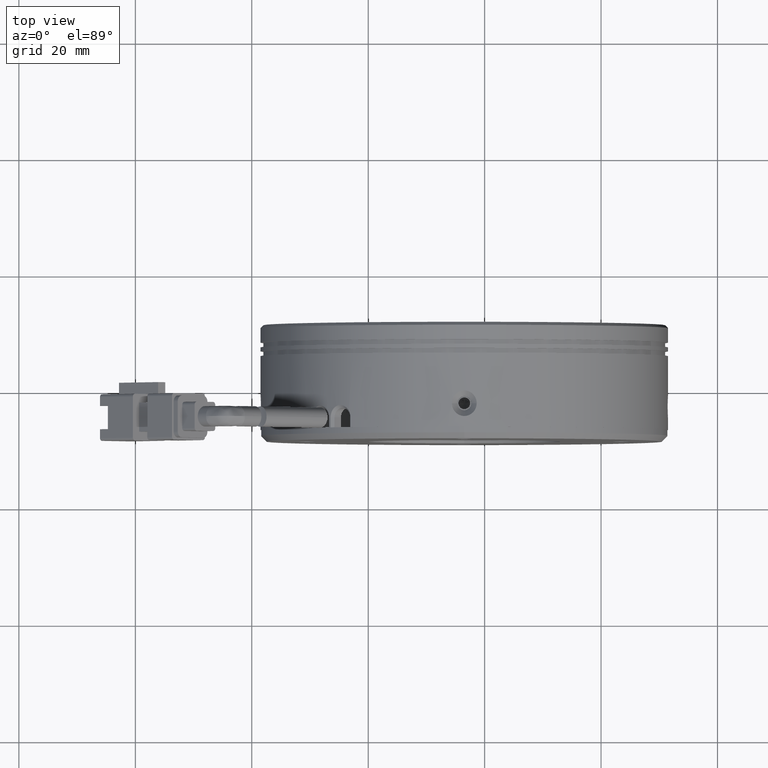
[diagram: clean part render]
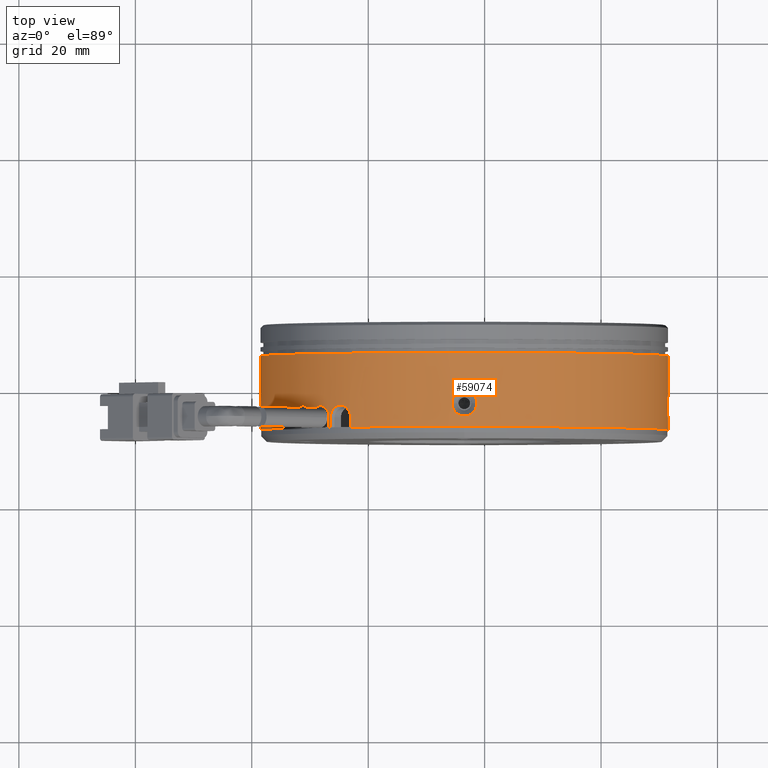
[diagram: same view with one face highlighted and labeled with its STEP entity id]
A machine part, top view. The second image highlights one B-rep face of the part: STEP entity #59074.
In plain terms, the highlighted cylindrical surface (partial cylindrical patch) has radius 35 mm, axis along (0, 1, 0).
Its self-contained STEP definition (entity closure, byte-faithful):
#90 = VECTOR ( 'NONE', #61698, 1000.000000000000000 ) ;
#496 = CARTESIAN_POINT ( 'NONE',  ( -3.355370643074829100, 34.87639525717587900, 34.99999074064810900 ) ) ;
#682 = B_SPLINE_CURVE_WITH_KNOTS ( 'NONE', 3,
 ( #10772, #73496, #64891, #59679, #17839, #66732, #24867, #73786, #31920, #80800, #38910, #87869, #45942, #4062, #52956, #11080, #59975, #18123, #67031, #25161, #74103, #32229, #81105, #39201, #88172, #46261, #4363, #53263, #11377, #60269 ),
 .UNSPECIFIED., .F., .F.,
 ( 4, 2, 2, 2, 2, 2, 2, 2, 2, 2, 2, 2, 2, 2, 4 ),
 ( 0.006801280354614730600, 0.007226328082781620700, 0.007651375810948510800, 0.008076423539115400900, 0.008501471267282290100, 0.009351566723616072000, 0.009776614451782964600, 0.01020166217994985600, 0.01062670990811674800, 0.01105175763628364100, 0.01147680536445053200, 0.01190185309261742500, 0.01232690082078431700, 0.01275194854895121000, 0.01360204400528499500 ),
 .UNSPECIFIED. ) ;
#795 = CARTESIAN_POINT ( 'NONE',  ( -5.579426259338808900, 36.50621998542190000, 34.93828416888767000 ) ) ;
#1013 = CARTESIAN_POINT ( 'NONE',  ( -32.21890749124506200, 36.17245694832277500, 20.00475085496275400 ) ) ;
#1087 = CARTESIAN_POINT ( 'NONE',  ( -38.44930703633446700, 38.17154099166220500, 1.871623688155621200 ) ) ;
#1326 = CARTESIAN_POINT ( 'NONE',  ( -30.45768874105179300, 36.45556069038318000, 22.32162571278679800 ) ) ;
#1375 = CARTESIAN_POINT ( 'NONE',  ( -32.52516980470208100, 33.08714941961366000, 19.55747368844025800 ) ) ;
#1688 = EDGE_CURVE ( 'NONE', #6267, #38843, #15653, .T. ) ;
#2411 = CARTESIAN_POINT ( 'NONE',  ( -23.05650673650320900, 33.10628284262292500, 29.02607274036124700 ) ) ;
#2578 = ORIENTED_EDGE ( 'NONE', *, *, #23024, .T. ) ;
#2735 = CARTESIAN_POINT ( 'NONE',  ( -38.43488934010948600, 36.79200188626543900, 2.121406078964621400 ) ) ;
#3035 = CARTESIAN_POINT ( 'NONE',  ( -38.49922928709050800, 34.87623869004255500, -1.373900992973631200E-014 ) ) ;
#3101 = CARTESIAN_POINT ( 'NONE',  ( 31.50077071290951400, 45.77623868994505300, 4.147485918937592700E-015 ) ) ;
#3259 = B_SPLINE_CURVE_WITH_KNOTS ( 'NONE', 3,
 ( #39654, #4498, #53699, #11812, #60711, #18865, #67759 ),
 .UNSPECIFIED., .F., .F.,
 ( 4, 3, 4 ),
 ( 7.632783294297951200E-017, 1.557727242651427000E-005, 4.511100456017559700E-005 ),
 .UNSPECIFIED. ) ;
#3858 = VERTEX_POINT ( 'NONE', #7149 ) ;
#4062 = CARTESIAN_POINT ( 'NONE',  ( -3.783482310473327700, 39.26154304773943000, 34.99912251806140500 ) ) ;
#4177 = CARTESIAN_POINT ( 'NONE',  ( -28.97946972464138300, 36.58691562346633900, 23.99626089325233000 ) ) ;
#4356 = DIRECTION ( 'NONE',  ( -1.000000000000000000, 0.0000000000000000000, -1.942890293094023500E-016 ) ) ;
#4363 = CARTESIAN_POINT ( 'NONE',  ( -1.575531328425882100, 38.04036387438655700, 34.94713316126452400 ) ) ;
#4463 = CARTESIAN_POINT ( 'NONE',  ( -27.10975982623885700, 36.14850123577952000, 25.83703752585223500 ) ) ;
#4497 = CARTESIAN_POINT ( 'NONE',  ( 31.45084846215306800, 35.98093638822206900, 1.871623688163358300 ) ) ;
#4498 = CARTESIAN_POINT ( 'NONE',  ( -26.46597744918592500, 33.08142987498360600, 26.41076445072638600 ) ) ;
#5124 = CARTESIAN_POINT ( 'NONE',  ( -26.41363987872078300, 35.32599599629639200, 26.45620074062070900 ) ) ;
#5422 = CARTESIAN_POINT ( 'NONE',  ( -24.58207903139069800, 36.86199809948782800, 27.93800242384497800 ) ) ;
#5696 = CARTESIAN_POINT ( 'NONE',  ( 31.45920961602619700, 38.40499250696495900, 1.706868790773296700 ) ) ;
#5725 = CARTESIAN_POINT ( 'NONE',  ( -23.06874529189614600, 35.05714326796012900, 29.01783674772186600 ) ) ;
#6104 = LINE ( 'NONE', #14257, #78353 ) ;
#6267 = VERTEX_POINT ( 'NONE', #49979 ) ;
#6297 = FACE_BOUND ( 'NONE', #41328, .T. ) ;
#6544 = VERTEX_POINT ( 'NONE', #18995 ) ;
#6874 = CARTESIAN_POINT ( 'NONE',  ( -23.05650673183460600, 34.77623868994505300, 29.02607274416062200 ) ) ;
#7149 = CARTESIAN_POINT ( 'NONE',  ( 31.43560278660753600, 37.07623868994505800, 2.134832073611387000 ) ) ;
#7230 = CARTESIAN_POINT ( 'NONE',  ( -1.430938378591527700, 36.51325634582809000, 34.93884486368479300 ) ) ;
#7467 = CARTESIAN_POINT ( 'NONE',  ( 31.50077071290951400, 39.27623868985474300, 4.147485918937590400E-015 ) ) ;
#7538 = CARTESIAN_POINT ( 'NONE',  ( -3.782198218099664300, 34.89081226548658800, 34.99912992300264100 ) ) ;
#7714 = B_SPLINE_CURVE_WITH_KNOTS ( 'NONE', 3,
 ( #32996, #74883, #47047, #5124, #54017, #12138, #61058, #19193, #68114, #26269, #75176, #33306, #82187, #40290, #89250, #47345, #5422, #54313, #12454, #61347, #19501, #68432, #26563, #75467, #33583, #82473, #40572, #89537, #47637, #5725, #54610, #12749 ),
 .UNSPECIFIED., .F., .F.,
 ( 4, 2, 2, 2, 2, 2, 2, 2, 2, 2, 2, 2, 2, 2, 2, 4 ),
 ( 0.0000000000000000000, 0.0004152412882299011100, 0.0008304825764598022100, 0.001245723864689703500, 0.001660965152919604400, 0.002491447729379407100, 0.002906689017609318600, 0.003321930305839230500, 0.003737171594069141600, 0.004152412882299052700, 0.004567654170528964200, 0.004982895458758875700, 0.005398136746988788100, 0.005813378035218699600, 0.006228619323448610300, 0.006643860611678522600 ),
 .UNSPECIFIED. ) ;
#7816 = CARTESIAN_POINT ( 'NONE',  ( -38.49922928709051500, 39.27623868984750300, 0.1431489450139444000 ) ) ;
#7828 = CARTESIAN_POINT ( 'NONE',  ( -5.634061360858810400, 37.07623868994505800, 34.93483207368843300 ) ) ;
#7992 = CIRCLE ( 'NONE', #47709, 35.00000000000000700 ) ;
#8025 = CARTESIAN_POINT ( 'NONE',  ( -38.49922928709050800, 49.23205631493804200, -1.373900992973631200E-014 ) ) ;
#8054 = CARTESIAN_POINT ( 'NONE',  ( -31.90791523299462500, 36.61451122822583700, 20.44535692094542900 ) ) ;
#8121 = CARTESIAN_POINT ( 'NONE',  ( -38.43807599479887900, 37.63936595150915600, 2.068260033006259500 ) ) ;
#8354 = CARTESIAN_POINT ( 'NONE',  ( -30.25864505335594100, 36.17448260794892400, 22.55978353994103700 ) ) ;
#8371 = CARTESIAN_POINT ( 'NONE',  ( 31.50077071290951400, 49.23205631493804200, 4.147485918937592700E-015 ) ) ;
#8416 = CARTESIAN_POINT ( 'NONE',  ( -32.52528866417332400, 33.10218477581542400, 19.55729728404286000 ) ) ;
#8497 = FACE_OUTER_BOUND ( 'NONE', #51110, .T. ) ;
#9438 = CARTESIAN_POINT ( 'NONE',  ( -23.05692204881608400, 33.07623868994505000, 29.02579290625166700 ) ) ;
#9507 = VERTEX_POINT ( 'NONE', #6874 ) ;
#9529 = ORIENTED_EDGE ( 'NONE', *, *, #18309, .T. ) ;
#9765 = CARTESIAN_POINT ( 'NONE',  ( -38.44045986722378700, 36.37502306740583400, 2.028086359610374400 ) ) ;
#10082 = VERTEX_POINT ( 'NONE', #43202 ) ;
#10266 = ORIENTED_EDGE ( 'NONE', *, *, #35504, .T. ) ;
#10492 = VERTEX_POINT ( 'NONE', #28448 ) ;
#10772 = CARTESIAN_POINT ( 'NONE',  ( -5.634061360858810400, 37.07623868994505800, 34.93483207368843300 ) ) ;
#10861 = VERTEX_POINT ( 'NONE', #70171 ) ;
#10899 = B_SPLINE_CURVE_WITH_KNOTS ( 'NONE', 3,
 ( #70751, #21833, #14809, #28866, #77772, #35887, #84810, #42893, #1013, #50003, #8054, #56944, #15118, #64013, #22144, #71054, #29171, #78100, #36190, #85117, #43208, #1326, #50290, #8354, #57254, #15423, #64311, #22460, #71365, #29495, #78409, #36500 ),
 .UNSPECIFIED., .F., .F.,
 ( 4, 2, 2, 2, 2, 2, 2, 2, 2, 2, 2, 2, 2, 2, 2, 4 ),
 ( 0.0000000000000000000, 0.0004152824789865322900, 0.0008305649579730645900, 0.001245847436959597000, 0.001661129915946129200, 0.002491694873919179700, 0.002906977352905696700, 0.003322259831892214100, 0.003737542310878725100, 0.004152824789865236000, 0.004568107268851747400, 0.004983389747838257900, 0.005398672226824768400, 0.005813954705811279700, 0.006229237184797791100, 0.006644519663784301600 ),
 .UNSPECIFIED. ) ;
#11003 = VERTEX_POINT ( 'NONE', #15764 ) ;
#11080 = CARTESIAN_POINT ( 'NONE',  ( -3.359911979963832600, 39.27639276641561100, 35.00000911203947900 ) ) ;
#11196 = CARTESIAN_POINT ( 'NONE',  ( -28.62725496723145800, 36.77952667242654900, 24.36391439423145800 ) ) ;
#11226 = CARTESIAN_POINT ( 'NONE',  ( 31.50077071290951400, 34.87623869003537200, 4.147485918937498800E-015 ) ) ;
#11240 = EDGE_CURVE ( 'NONE', #25131, #21783, #64054, .T. ) ;
#11377 = CARTESIAN_POINT ( 'NONE',  ( -1.364397213318255400, 37.36241324350477600, 34.93483207367803800 ) ) ;
#11474 = CARTESIAN_POINT ( 'NONE',  ( -26.93170683684961400, 35.82022912540372800, 25.99855481076118500 ) ) ;
#11514 = CARTESIAN_POINT ( 'NONE',  ( 31.43961742061734200, 36.51311142837625600, 2.068260033015473000 ) ) ;
#11638 = CARTESIAN_POINT ( 'NONE',  ( -23.05692204881608400, 33.07623868994505000, 29.02579290625166700 ) ) ;
#11812 = CARTESIAN_POINT ( 'NONE',  ( -26.46610430588221200, 33.09181341786147400, 26.41065413561741300 ) ) ;
#12032 = EDGE_CURVE ( 'NONE', #69007, #65923, #19952, .T. ) ;
#12138 = CARTESIAN_POINT ( 'NONE',  ( -26.29906092009340000, 35.71675935869110000, 26.55504965282142700 ) ) ;
#12454 = CARTESIAN_POINT ( 'NONE',  ( -24.25735222048315600, 36.76992079441872400, 28.18008267164554300 ) ) ;
#12723 = CARTESIAN_POINT ( 'NONE',  ( 31.47618942203703800, 38.82374157385329700, 1.325940147550659100 ) ) ;
#12749 = CARTESIAN_POINT ( 'NONE',  ( -23.05650673183460600, 34.77623868994505300, 29.02607274416062200 ) ) ;
#12795 = CARTESIAN_POINT ( 'NONE',  ( -26.72160380067638400, 49.23205631493804200, 26.18628117833375800 ) ) ;
#13925 = CARTESIAN_POINT ( 'NONE',  ( 31.50077071290951400, 33.07623868994505000, 4.147485918937592700E-015 ) ) ;
#14257 = CARTESIAN_POINT ( 'NONE',  ( -26.46626367548725500, 49.23205631493804200, 26.41051554593739300 ) ) ;
#14262 = CARTESIAN_POINT ( 'NONE',  ( -1.575538523907559400, 36.11209457325604400, 34.94713357074541400 ) ) ;
#14527 = CARTESIAN_POINT ( 'NONE',  ( -29.91005054073716700, 33.07623868994407000, 22.96668284071266100 ) ) ;
#14583 = EDGE_CURVE ( 'NONE', #69007, #10082, #3259, .T. ) ;
#14585 = CARTESIAN_POINT ( 'NONE',  ( -4.193854354902994100, 34.99089141182425100, 34.99335202203370400 ) ) ;
#14715 = ORIENTED_EDGE ( 'NONE', *, *, #75931, .T. ) ;
#14809 = CARTESIAN_POINT ( 'NONE',  ( -32.51728035346624800, 35.05462126878820300, 19.56919790338977400 ) ) ;
#15082 = DIRECTION ( 'NONE',  ( 0.0000000000000000000, 1.000000000000000000, 0.0000000000000000000 ) ) ;
#15118 = CARTESIAN_POINT ( 'NONE',  ( -31.60007463868275200, 36.80919942385151700, 20.86531018256495400 ) ) ;
#15188 = CARTESIAN_POINT ( 'NONE',  ( -38.43406136078914400, 37.21927261467683900, 2.134832073601180100 ) ) ;
#15232 = CARTESIAN_POINT ( 'NONE',  ( -3.499229287090496400, 33.07623868994505000, -6.938893903907228400E-015 ) ) ;
#15423 = CARTESIAN_POINT ( 'NONE',  ( -30.09884793005326700, 35.84071393895220600, 22.74788916778230400 ) ) ;
#15478 = CARTESIAN_POINT ( 'NONE',  ( -32.52532653127335000, 33.12134584970629400, 19.55724108281228600 ) ) ;
#15653 = LINE ( 'NONE', #59229, #34228 ) ;
#15764 = CARTESIAN_POINT ( 'NONE',  ( -29.68517925304296100, 33.07623868994461700, 23.22274799373740700 ) ) ;
#15767 = VERTEX_POINT ( 'NONE', #7467 ) ;
#16830 = CARTESIAN_POINT ( 'NONE',  ( -38.44987319850071800, 35.98671736355584700, 1.859661740656727300 ) ) ;
#16990 = CARTESIAN_POINT ( 'NONE',  ( -26.72197728007797200, 33.07623868994410500, 26.18594996657880400 ) ) ;
#17057 = CARTESIAN_POINT ( 'NONE',  ( -29.68531802590951700, 33.08657568895214500, 23.22259151275607900 ) ) ;
#17690 = CARTESIAN_POINT ( 'NONE',  ( -32.52532653127335000, 33.12134584970629400, 19.55724108281228600 ) ) ;
#17839 = CARTESIAN_POINT ( 'NONE',  ( -5.527270620121446300, 37.77759846693115300, 34.94123322545148400 ) ) ;
#18123 = CARTESIAN_POINT ( 'NONE',  ( -2.939392122811227600, 39.20416979702773100, 34.99579616371984500 ) ) ;
#18221 = CARTESIAN_POINT ( 'NONE',  ( -28.34480495088970600, 36.84483300927527000, 24.65189339179814400 ) ) ;
#18252 = CARTESIAN_POINT ( 'NONE',  ( 31.50077071290951400, 34.87623869003545700, 0.1431489450146108700 ) ) ;
#18309 = EDGE_CURVE ( 'NONE', #38843, #54217, #32042, .T. ) ;
#18349 = ORIENTED_EDGE ( 'NONE', *, *, #12032, .F. ) ;
#18465 = EDGE_CURVE ( 'NONE', #21783, #26464, #10899, .T. ) ;
#18527 = CARTESIAN_POINT ( 'NONE',  ( -26.80295710797288700, 35.44763967702675000, 26.11396385043589400 ) ) ;
#18558 = CARTESIAN_POINT ( 'NONE',  ( 31.43560278659842700, 36.93322241865560300, 2.134832073614672900 ) ) ;
#18761 = B_SPLINE_CURVE_WITH_KNOTS ( 'NONE', 3,
 ( #84575, #7816, #63775, #21901, #70819, #28936, #77850, #35956, #84876, #42967, #1087, #50066, #8121, #57022, #15188, #64074 ),
 .UNSPECIFIED., .F., .F.,
 ( 4, 2, 2, 2, 2, 2, 2, 4 ),
 ( 0.006786052840648299100, 0.007210104708480689200, 0.007634156576313079300, 0.008058208444145469400, 0.008482260311977860400, 0.009330364047642638800, 0.009754415915475028000, 0.01017846778330741700 ),
 .UNSPECIFIED. ) ;
#18865 = CARTESIAN_POINT ( 'NONE',  ( -26.46626366991374700, 33.11150145402800900, 26.41051555078419700 ) ) ;
#18891 = AXIS2_PLACEMENT_3D ( 'NONE', #36971, #85903, #43986 ) ;
#18995 = CARTESIAN_POINT ( 'NONE',  ( -23.05650673256541000, 33.12134584970664300, 29.02607274384642700 ) ) ;
#19193 = CARTESIAN_POINT ( 'NONE',  ( -26.12825900235608500, 36.06718584694523600, 26.70080962140444200 ) ) ;
#19475 = CARTESIAN_POINT ( 'NONE',  ( 31.43560278659839100, 37.21930652079965500, 2.134832073615021000 ) ) ;
#19501 = CARTESIAN_POINT ( 'NONE',  ( -23.94712327928421700, 36.60159261119267200, 28.40593523917219800 ) ) ;
#19782 = CARTESIAN_POINT ( 'NONE',  ( 31.49401059829447300, 39.15957240098404700, 0.6999233007469922700 ) ) ;
#19952 = CIRCLE ( 'NONE', #60130, 35.00000000000000700 ) ;
#20440 = B_SPLINE_CURVE_WITH_KNOTS ( 'NONE', 3,
 ( #23541, #37612, #2735, #51676, #9765, #58671, #16830, #65700, #23850, #72763, #30900, #79790, #37917, #86851, #44926, #3035 ),
 .UNSPECIFIED., .F., .F.,
 ( 4, 2, 2, 2, 2, 2, 2, 4 ),
 ( 0.01017846778330741700, 0.01060262017243397500, 0.01102677256156053100, 0.01145092495068708900, 0.01187507733981364700, 0.01272338211806676100, 0.01314753450719331400, 0.01357168689631986700 ),
 .UNSPECIFIED. ) ;
#21325 = CARTESIAN_POINT ( 'NONE',  ( -1.792538168496689500, 35.74723904340273600, 34.95844764762033900 ) ) ;
#21553 = EDGE_CURVE ( 'NONE', #10082, #87649, #6104, .T. ) ;
#21586 = VECTOR ( 'NONE', #47540, 1000.000000000000000 ) ;
#21618 = CARTESIAN_POINT ( 'NONE',  ( -4.580146874259596300, 35.17381842846386800, 34.98349673944768100 ) ) ;
#21638 = ORIENTED_EDGE ( 'NONE', *, *, #54575, .F. ) ;
#21783 = VERTEX_POINT ( 'NONE', #87334 ) ;
#21833 = CARTESIAN_POINT ( 'NONE',  ( -32.52532439524604500, 34.91665560219384200, 19.55724425302102500 ) ) ;
#21901 = CARTESIAN_POINT ( 'NONE',  ( -38.49500690506638300, 39.20384695216864700, 0.5610206150766298100 ) ) ;
#22144 = CARTESIAN_POINT ( 'NONE',  ( -31.35310266635988400, 36.87569678694518400, 21.19389037858061500 ) ) ;
#22193 = CARTESIAN_POINT ( 'NONE',  ( -38.49922928709050800, 33.07623868994505000, -1.373900992973631200E-014 ) ) ;
#22263 = DIRECTION ( 'NONE',  ( -1.000000000000000000, 0.0000000000000000000, -1.942890293094023500E-016 ) ) ;
#22460 = CARTESIAN_POINT ( 'NONE',  ( -29.98302609540985100, 35.46114222802624000, 22.88255891083416000 ) ) ;
#22600 = CARTESIAN_POINT ( 'NONE',  ( -3.499229287090496400, 33.07623868994505000, -6.938893903907228400E-015 ) ) ;
#23024 = EDGE_CURVE ( 'NONE', #54217, #23531, #37336, .T. ) ;
#23531 = VERTEX_POINT ( 'NONE', #60989 ) ;
#23541 = CARTESIAN_POINT ( 'NONE',  ( -38.43406136078915100, 37.07623868994505800, 2.134832073601135200 ) ) ;
#23850 = CARTESIAN_POINT ( 'NONE',  ( -38.46193766112087100, 35.63449119787739500, 1.618187548130787700 ) ) ;
#24064 = CARTESIAN_POINT ( 'NONE',  ( -29.68546292176455700, 33.10161095143445900, 23.22242812564610400 ) ) ;
#24638 = ORIENTED_EDGE ( 'NONE', *, *, #49841, .T. ) ;
#24861 = CARTESIAN_POINT ( 'NONE',  ( -3.499229287090496400, 49.23205631493804200, -6.938893903907228400E-015 ) ) ;
#24867 = CARTESIAN_POINT ( 'NONE',  ( -5.358777266886664700, 38.16597043121349500, 34.95065003424877400 ) ) ;
#24937 = EDGE_CURVE ( 'NONE', #47840, #10861, #48382, .T. ) ;
#24977 = CARTESIAN_POINT ( 'NONE',  ( -29.64046438720464500, 35.31517709525490300, 23.27308654501770100 ) ) ;
#25131 = VERTEX_POINT ( 'NONE', #17690 ) ;
#25161 = CARTESIAN_POINT ( 'NONE',  ( -2.542458032506417000, 39.04820918962717300, 34.98716591107665200 ) ) ;
#25277 = CARTESIAN_POINT ( 'NONE',  ( -28.05440875344324400, 36.83167715362536400, 24.94115025762434400 ) ) ;
#25323 = CARTESIAN_POINT ( 'NONE',  ( 31.49654833088533900, 34.94863042771424900, 0.5610206150783537700 ) ) ;
#25377 = CARTESIAN_POINT ( 'NONE',  ( -38.49922928709050800, 39.27623868984756000, -1.373900992973624100E-014 ) ) ;
#25586 = CARTESIAN_POINT ( 'NONE',  ( -26.73216544170527000, 35.05156490842850300, 26.17692534184958600 ) ) ;
#26269 = CARTESIAN_POINT ( 'NONE',  ( -25.82974311901726900, 36.46406100834682500, 26.95158187246774200 ) ) ;
#26406 = ORIENTED_EDGE ( 'NONE', *, *, #18465, .T. ) ;
#26464 = VERTEX_POINT ( 'NONE', #42152 ) ;
#26563 = CARTESIAN_POINT ( 'NONE',  ( -23.66895945501089200, 36.36599182774763500, 28.60405928037530300 ) ) ;
#26824 = CARTESIAN_POINT ( 'NONE',  ( 31.49989230067373200, 39.26152844011900100, 0.2844990879349596500 ) ) ;
#27076 = EDGE_CURVE ( 'NONE', #47840, #60481, #85656, .T. ) ;
#27629 = CARTESIAN_POINT ( 'NONE',  ( -26.72160380423087700, 33.10628297585962800, 26.18628117456815100 ) ) ;
#28169 = ORIENTED_EDGE ( 'NONE', *, *, #63393, .T. ) ;
#28346 = CARTESIAN_POINT ( 'NONE',  ( -2.173610789869039600, 35.32846671563379500, 34.97543131385659600 ) ) ;
#28448 = CARTESIAN_POINT ( 'NONE',  ( -38.43406136078915100, 37.07623868994505800, 2.134832073601135200 ) ) ;
#28473 = ORIENTED_EDGE ( 'NONE', *, *, #35987, .T. ) ;
#28657 = CARTESIAN_POINT ( 'NONE',  ( -4.920848360938979500, 35.42896765539112600, 34.97125478826109200 ) ) ;
#28779 = EDGE_CURVE ( 'NONE', #87649, #9507, #7714, .T. ) ;
#28866 = CARTESIAN_POINT ( 'NONE',  ( -32.48572756146808900, 35.32586441836723900, 19.61590456905646500 ) ) ;
#28936 = CARTESIAN_POINT ( 'NONE',  ( -38.48635430840459300, 39.04742841710189100, 0.9580917013805144700 ) ) ;
#29171 = CARTESIAN_POINT ( 'NONE',  ( -31.09779853123330200, 36.86352304521961500, 21.52527646639874000 ) ) ;
#29231 = CARTESIAN_POINT ( 'NONE',  ( -32.52511439086308100, 33.08169378863010500, 19.55755593004963400 ) ) ;
#29495 = CARTESIAN_POINT ( 'NONE',  ( -29.91924764129770200, 35.05716682080303300, 22.95611932965989900 ) ) ;
#29647 = DIRECTION ( 'NONE',  ( 1.000000000000000000, 0.0000000000000000000, 1.942890293094023700E-016 ) ) ;
#29735 = EDGE_CURVE ( 'NONE', #39693, #50044, #682, .T. ) ;
#30139 = CARTESIAN_POINT ( 'NONE',  ( -26.72160380067638400, 34.77623868994505300, 26.18628117833375800 ) ) ;
#30281 = VERTEX_POINT ( 'NONE', #11638 ) ;
#30900 = CARTESIAN_POINT ( 'NONE',  ( -38.48327565902823000, 35.16152695387018700, 1.087851395278404600 ) ) ;
#31140 = CARTESIAN_POINT ( 'NONE',  ( -29.68551046542420800, 33.12134584970633000, 23.22237451358594700 ) ) ;
#31506 = EDGE_CURVE ( 'NONE', #23531, #65923, #71024, .T. ) ;
#31915 = ORIENTED_EDGE ( 'NONE', *, *, #52083, .T. ) ;
#31920 = CARTESIAN_POINT ( 'NONE',  ( -5.117206051048472500, 38.51824035845854900, 34.96271823226722800 ) ) ;
#32026 = CARTESIAN_POINT ( 'NONE',  ( -29.54231147251996200, 35.69855545425129900, 23.38291466975027100 ) ) ;
#32042 = B_SPLINE_CURVE_WITH_KNOTS ( 'NONE', 3,
 ( #66835, #52766, #87363, #24977, #73895, #32026, #80909, #39011, #87983, #46053, #4177, #53076, #11196, #60073, #18221, #67151, #25277, #74204, #32326, #81228, #39306, #88274, #46370, #4463, #53364, #11474, #60381, #18527, #67420, #25586, #74516, #32632 ),
 .UNSPECIFIED., .F., .F.,
 ( 4, 2, 2, 2, 2, 2, 2, 2, 2, 2, 2, 2, 2, 2, 2, 4 ),
 ( 0.0000000000000000000, 0.0004070252156231301800, 0.0008140504312462603500, 0.001221075646869390600, 0.001628100862492520700, 0.002442151293738760800, 0.002849176509361880900, 0.003256201724985000200, 0.003663226940608119500, 0.004070252156231238800, 0.004477277371854358100, 0.004884302587477477300, 0.005291327803100597500, 0.005698353018723716800, 0.006105378234346836100, 0.006512403449969954500 ),
 .UNSPECIFIED. ) ;
#32229 = CARTESIAN_POINT ( 'NONE',  ( -2.186697782162971400, 38.81701594028107400, 34.97557273294851400 ) ) ;
#32240 = CARTESIAN_POINT ( 'NONE',  ( -3.499229287090496400, 45.77623868994505300, -6.938893903907228400E-015 ) ) ;
#32322 = CARTESIAN_POINT ( 'NONE',  ( -26.46589185543577800, 33.07623868994462400, 26.41083888239386500 ) ) ;
#32326 = CARTESIAN_POINT ( 'NONE',  ( -27.76993405353088200, 36.74103152869096100, 25.21802729904648600 ) ) ;
#32358 = CARTESIAN_POINT ( 'NONE',  ( 31.48789573422353900, 35.10504896278109800, 0.9580917013837750900 ) ) ;
#32632 = CARTESIAN_POINT ( 'NONE',  ( -26.72160380067638400, 34.77623868994505300, 26.18628117833375800 ) ) ;
#32996 = CARTESIAN_POINT ( 'NONE',  ( -26.46626367548724800, 34.77623868994506000, 26.41051554593740700 ) ) ;
#33306 = CARTESIAN_POINT ( 'NONE',  ( -25.34433801059612200, 36.77240159372363600, 27.34607401877343600 ) ) ;
#33334 = ORIENTED_EDGE ( 'NONE', *, *, #33420, .T. ) ;
#33420 = EDGE_CURVE ( 'NONE', #10861, #25131, #55054, .T. ) ;
#33559 = CARTESIAN_POINT ( 'NONE',  ( 31.43643076592787700, 37.36047549362609000, 2.121406078974754600 ) ) ;
#33583 = CARTESIAN_POINT ( 'NONE',  ( -23.42917275770623000, 36.06601376351957100, 28.77157648209005500 ) ) ;
#33768 = CARTESIAN_POINT ( 'NONE',  ( -32.52532653127335000, 49.23205631493804200, 19.55724108281227900 ) ) ;
#33846 = CARTESIAN_POINT ( 'NONE',  ( 31.50077071290951400, 39.27623868985474300, 4.147485918937590400E-015 ) ) ;
#34228 = VECTOR ( 'NONE', #66277, 1000.000000000000000 ) ;
#34267 = VECTOR ( 'NONE', #15082, 1000.000000000000000 ) ;
#35379 = CARTESIAN_POINT ( 'NONE',  ( -2.799841674856637500, 34.99271157376571800, 34.99325075268620100 ) ) ;
#35504 = EDGE_CURVE ( 'NONE', #6544, #30281, #78666, .T. ) ;
#35515 = DIRECTION ( 'NONE',  ( -0.0000000000000000000, -1.000000000000000000, 0.0000000000000000000 ) ) ;
#35667 = CARTESIAN_POINT ( 'NONE',  ( -5.204434090202865600, 35.74524599931661600, 34.95852016238820400 ) ) ;
#35887 = CARTESIAN_POINT ( 'NONE',  ( -32.39959824740081000, 35.71585469069387400, 19.74263730738862000 ) ) ;
#35914 = ORIENTED_EDGE ( 'NONE', *, *, #11240, .T. ) ;
#35934 = CARTESIAN_POINT ( 'NONE',  ( -23.05650673183460600, 49.23205631493804200, 29.02607274416062200 ) ) ;
#35956 = CARTESIAN_POINT ( 'NONE',  ( -38.47472927624921400, 38.81549463309738700, 1.314540449526540500 ) ) ;
#35987 = EDGE_CURVE ( 'NONE', #9507, #6544, #65746, .T. ) ;
#36059 = LINE ( 'NONE', #66552, #71077 ) ;
#36190 = CARTESIAN_POINT ( 'NONE',  ( -30.84669509655437700, 36.77321488735094600, 21.84337122616842600 ) ) ;
#36365 = ORIENTED_EDGE ( 'NONE', *, *, #31506, .T. ) ;
#36463 = LINE ( 'NONE', #8025, #34267 ) ;
#36500 = CARTESIAN_POINT ( 'NONE',  ( -29.90972720879264200, 34.77623868994502500, 22.96705465504375000 ) ) ;
#36563 = DIRECTION ( 'NONE',  ( 0.0000000000000000000, 1.000000000000000000, 0.0000000000000000000 ) ) ;
#36635 = ORIENTED_EDGE ( 'NONE', *, *, #21553, .T. ) ;
#36971 = CARTESIAN_POINT ( 'NONE',  ( -3.499229287090496400, 33.07623868994505000, -6.938893903907228400E-015 ) ) ;
#37075 = VERTEX_POINT ( 'NONE', #89610 ) ;
#37336 = LINE ( 'NONE', #12795, #90 ) ;
#37612 = CARTESIAN_POINT ( 'NONE',  ( -38.43406136078915100, 36.93317085908777400, 2.134832073601089500 ) ) ;
#37664 = ORIENTED_EDGE ( 'NONE', *, *, #51499, .T. ) ;
#37917 = CARTESIAN_POINT ( 'NONE',  ( -38.49497207100335300, 34.94923540123001300, 0.5634169400629744900 ) ) ;
#38396 = CARTESIAN_POINT ( 'NONE',  ( -26.46626367548724800, 34.77623868994506000, 26.41051554593740700 ) ) ;
#38744 = DIRECTION ( 'NONE',  ( -0.0000000000000000000, -1.000000000000000000, -0.0000000000000000000 ) ) ;
#38843 = VERTEX_POINT ( 'NONE', #83602 ) ;
#38910 = CARTESIAN_POINT ( 'NONE',  ( -4.586672278298232500, 38.99120661238733700, 34.98405969625235200 ) ) ;
#39011 = CARTESIAN_POINT ( 'NONE',  ( -29.39579181623729600, 36.04285887621468000, 23.54514694683041800 ) ) ;
#39201 = CARTESIAN_POINT ( 'NONE',  ( -1.881202092979125600, 38.51828323244939200, 34.96271800440749900 ) ) ;
#39218 = DIRECTION ( 'NONE',  ( -1.000000000000000000, 0.0000000000000000000, -1.942890293094023500E-016 ) ) ;
#39245 = B_SPLINE_CURVE_WITH_KNOTS ( 'NONE', 3,
 ( #90733, #42068, #49155, #7230, #56121, #14262, #63188, #21325, #70232, #28346, #77253, #35379, #84286, #42361, #496, #49466, #7538, #56414, #14585, #63487, #21618, #70541, #28657, #77575, #35667, #84589, #42658, #795, #49775, #7828 ),
 .UNSPECIFIED., .F., .F.,
 ( 4, 2, 2, 2, 2, 2, 2, 2, 2, 2, 2, 2, 2, 2, 4 ),
 ( 0.0000000000000000000, 0.0004250800221634180100, 0.0008501600443268360200, 0.001275240066490254000, 0.001700320088653672000, 0.002550480132980507200, 0.002975560155143929700, 0.003400640177307351900, 0.003825720199470774000, 0.004250800221634197000, 0.004675880243797618700, 0.005100960265961042100, 0.005526040288124463800, 0.005951120310287887200, 0.006801280354614730600 ),
 .UNSPECIFIED. ) ;
#39306 = CARTESIAN_POINT ( 'NONE',  ( -27.49805027081105600, 36.57435920577491100, 25.47684187512815900 ) ) ;
#39340 = CARTESIAN_POINT ( 'NONE',  ( 31.47627070206805700, 35.33698274678562300, 1.314540449531120400 ) ) ;
#39654 = CARTESIAN_POINT ( 'NONE',  ( -26.46589185543577800, 33.07623868994462400, 26.41083888239386500 ) ) ;
#39693 = VERTEX_POINT ( 'NONE', #58967 ) ;
#39838 = VERTEX_POINT ( 'NONE', #25377 ) ;
#40290 = CARTESIAN_POINT ( 'NONE',  ( -25.02331518822071700, 36.86371784935684600, 27.59950126062173200 ) ) ;
#40480 = CARTESIAN_POINT ( 'NONE',  ( 31.50077071290951400, 49.23205631493804200, 4.147485918937592700E-015 ) ) ;
#40548 = CARTESIAN_POINT ( 'NONE',  ( 31.44200129304226000, 37.77745431248731500, 2.028086359619889500 ) ) ;
#40572 = CARTESIAN_POINT ( 'NONE',  ( -23.24214805060694300, 35.71650215980028500, 28.90017702221050700 ) ) ;
#41328 = EDGE_LOOP ( 'NONE', ( #59468, #59530 ) ) ;
#41483 = ORIENTED_EDGE ( 'NONE', *, *, #28779, .T. ) ;
#42068 = CARTESIAN_POINT ( 'NONE',  ( -1.364397213318255400, 36.93314054177425700, 34.93483207367804500 ) ) ;
#42152 = CARTESIAN_POINT ( 'NONE',  ( -29.90972720879264200, 34.77623868994502500, 22.96705465504375000 ) ) ;
#42234 = CARTESIAN_POINT ( 'NONE',  ( -26.72197728007797200, 33.07623868994410500, 26.18594996657880400 ) ) ;
#42314 = CARTESIAN_POINT ( 'NONE',  ( -29.90972720926512100, 33.12134584970655700, 22.96705465468053800 ) ) ;
#42361 = CARTESIAN_POINT ( 'NONE',  ( -3.214976263707694800, 34.89093433215070700, 34.99912251806139100 ) ) ;
#42563 = VERTEX_POINT ( 'NONE', #51589 ) ;
#42658 = CARTESIAN_POINT ( 'NONE',  ( -5.422927245755125200, 36.11211350550357200, 34.94713316126451700 ) ) ;
#42893 = CARTESIAN_POINT ( 'NONE',  ( -32.27119035412150100, 36.06534127509602400, 19.92939004156805500 ) ) ;
#42967 = CARTESIAN_POINT ( 'NONE',  ( -38.45770563612305900, 38.41622023768910300, 1.715529665173488100 ) ) ;
#43202 = CARTESIAN_POINT ( 'NONE',  ( -26.46626367548724800, 33.12134584970633000, 26.41051554593739300 ) ) ;
#43208 = CARTESIAN_POINT ( 'NONE',  ( -30.60535279320352900, 36.60559141270771700, 22.14207711719853200 ) ) ;
#43986 = DIRECTION ( 'NONE',  ( -1.000000000000000000, 0.0000000000000000000, -1.942890293094023500E-016 ) ) ;
#44926 = CARTESIAN_POINT ( 'NONE',  ( -38.49922928707955800, 34.87623869003801500, 0.1431740422147703400 ) ) ;
#45461 = VECTOR ( 'NONE', #61847, 1000.000000000000000 ) ;
#45930 = DIRECTION ( 'NONE',  ( 0.0000000000000000000, 1.000000000000000000, 0.0000000000000000000 ) ) ;
#45942 = CARTESIAN_POINT ( 'NONE',  ( -4.061863196109476900, 39.20344228934077800, 34.99575431248762000 ) ) ;
#45959 = CARTESIAN_POINT ( 'NONE',  ( 31.50077071290951400, 34.87623869003537200, 4.147485918937498800E-015 ) ) ;
#46053 = CARTESIAN_POINT ( 'NONE',  ( -29.13898031813537400, 36.43399729829361200, 23.82521363262265600 ) ) ;
#46261 = CARTESIAN_POINT ( 'NONE',  ( -1.641182181223893400, 38.16864679442213100, 34.95072983954757700 ) ) ;
#46370 = CARTESIAN_POINT ( 'NONE',  ( -27.25449831927776100, 36.34085957950461000, 25.70402407524467100 ) ) ;
#46399 = CARTESIAN_POINT ( 'NONE',  ( 31.45924706194176000, 35.73625714219459600, 1.715529665180217400 ) ) ;
#46647 = VERTEX_POINT ( 'NONE', #3101 ) ;
#47047 = CARTESIAN_POINT ( 'NONE',  ( -26.45557192205593100, 35.05463610450787100, 26.41982405724736100 ) ) ;
#47298 = EDGE_CURVE ( 'NONE', #3858, #15767, #60916, .T. ) ;
#47345 = CARTESIAN_POINT ( 'NONE',  ( -24.69425828352930800, 36.87576055887231500, 27.85300707365549400 ) ) ;
#47540 = DIRECTION ( 'NONE',  ( 0.0000000000000000000, 1.000000000000000000, 0.0000000000000000000 ) ) ;
#47614 = CARTESIAN_POINT ( 'NONE',  ( 31.45141462431927300, 38.16576001633865200, 1.859661740665222100 ) ) ;
#47637 = CARTESIAN_POINT ( 'NONE',  ( -23.11580020594365000, 35.32861478778553300, 28.98604753265588800 ) ) ;
#47709 = AXIS2_PLACEMENT_3D ( 'NONE', #77418, #35515, #84433 ) ;
#47840 = VERTEX_POINT ( 'NONE', #22193 ) ;
#48382 = CIRCLE ( 'NONE', #18891, 35.00000000000000700 ) ;
#48474 = ORIENTED_EDGE ( 'NONE', *, *, #75442, .T. ) ;
#48573 = B_SPLINE_CURVE_WITH_KNOTS ( 'NONE', 3,
 ( #51600, #51900, #17057, #65937, #24064, #72993, #31140 ),
 .UNSPECIFIED., .F., .F.,
 ( 4, 3, 4 ),
 ( 7.632783294297951200E-017, 1.550858785957242700E-005, 4.511111130278940200E-005 ),
 .UNSPECIFIED. ) ;
#49155 = CARTESIAN_POINT ( 'NONE',  ( -1.377828845883924300, 36.79194204904494100, 34.93566040393197600 ) ) ;
#49465 = EDGE_CURVE ( 'NONE', #39838, #10492, #18761, .T. ) ;
#49466 = CARTESIAN_POINT ( 'NONE',  ( -3.638546594217164600, 34.87608461347451100, 35.00000911203947900 ) ) ;
#49652 = CARTESIAN_POINT ( 'NONE',  ( -1.364397213318255400, 37.07623868994505800, 34.93483207367803800 ) ) ;
#49775 = CARTESIAN_POINT ( 'NONE',  ( -5.634061360858559900, 36.79002064916819800, 34.93483207368844700 ) ) ;
#49841 = EDGE_CURVE ( 'NONE', #15767, #46647, #58772, .T. ) ;
#49979 = CARTESIAN_POINT ( 'NONE',  ( -29.68551046542420800, 33.12134584970633000, 23.22237451358594700 ) ) ;
#50003 = CARTESIAN_POINT ( 'NONE',  ( -32.04697049621529500, 36.46043286356463400, 20.25009539567988900 ) ) ;
#50044 = VERTEX_POINT ( 'NONE', #49652 ) ;
#50066 = CARTESIAN_POINT ( 'NONE',  ( -38.44046198416396700, 37.77755843533714900, 2.028049576817924300 ) ) ;
#50290 = CARTESIAN_POINT ( 'NONE',  ( -30.38817541865017800, 36.36958000379309700, 22.40523915192453700 ) ) ;
#50313 = DIRECTION ( 'NONE',  ( 0.0000000000000000000, 1.000000000000000000, 0.0000000000000000000 ) ) ;
#50344 = CARTESIAN_POINT ( 'NONE',  ( -32.52521293538058000, 33.09260531730162600, 19.55740967636558700 ) ) ;
#51110 = EDGE_LOOP ( 'NONE', ( #73513, #51935, #58840, #67315, #24638, #31915, #21638, #57697, #48474, #73223, #54822, #33334, #35914, #26406, #37664, #28169, #56408, #14715, #54727, #9529, #2578, #36365, #18349, #61342, #36635, #41483, #28473, #10266 ) ) ;
#51329 = CARTESIAN_POINT ( 'NONE',  ( -23.05664565034080800, 33.09124664477191400, 29.02597914489887600 ) ) ;
#51499 = EDGE_CURVE ( 'NONE', #26464, #42563, #36059, .T. ) ;
#51589 = CARTESIAN_POINT ( 'NONE',  ( -29.90972720926512100, 33.12134584970655700, 22.96705465468053800 ) ) ;
#51600 = CARTESIAN_POINT ( 'NONE',  ( -29.68517925304296100, 33.07623868994461700, 23.22274799373740700 ) ) ;
#51676 = CARTESIAN_POINT ( 'NONE',  ( -38.43807247789946000, 36.51337363932884700, 2.068319022790498200 ) ) ;
#51900 = CARTESIAN_POINT ( 'NONE',  ( -29.68525516250278800, 33.08140695311698900, 23.22266239829805600 ) ) ;
#51935 = ORIENTED_EDGE ( 'NONE', *, *, #67579, .T. ) ;
#52083 = EDGE_CURVE ( 'NONE', #46647, #37075, #76254, .T. ) ;
#52766 = CARTESIAN_POINT ( 'NONE',  ( -29.68550806380132200, 34.91384285647574600, 23.22237722173160500 ) ) ;
#52956 = CARTESIAN_POINT ( 'NONE',  ( -3.643087931106197000, 39.27608212271423600, 34.99999074064810900 ) ) ;
#53076 = CARTESIAN_POINT ( 'NONE',  ( -28.71899431193891800, 36.74013805675299700, 24.26889469041680100 ) ) ;
#53263 = CARTESIAN_POINT ( 'NONE',  ( -1.419032314842205000, 37.64625739446822900, 34.93828416888766200 ) ) ;
#53342 = CYLINDRICAL_SURFACE ( 'NONE', #72901, 35.00000000000000700 ) ;
#53364 = CARTESIAN_POINT ( 'NONE',  ( -27.04517305196541300, 36.04416105285866200, 25.89583728303579600 ) ) ;
#53398 = CARTESIAN_POINT ( 'NONE',  ( 31.44200340998244800, 36.37491894454797100, 2.028049576826787400 ) ) ;
#53699 = CARTESIAN_POINT ( 'NONE',  ( -26.46604826730417400, 33.08662152481653600, 26.41070286712597000 ) ) ;
#53734 = VECTOR ( 'NONE', #50313, 1000.000000000000000 ) ;
#54017 = CARTESIAN_POINT ( 'NONE',  ( -26.38184856767035700, 35.46081790309658300, 26.48374443724160400 ) ) ;
#54217 = VERTEX_POINT ( 'NONE', #30139 ) ;
#54313 = CARTESIAN_POINT ( 'NONE',  ( -24.36411048212180900, 36.80898341746802100, 28.10116128370383800 ) ) ;
#54575 = EDGE_CURVE ( 'NONE', #39838, #37075, #36463, .T. ) ;
#54582 = CARTESIAN_POINT ( 'NONE',  ( 31.46347908693954700, 38.51798618201817000, 1.618187548137977500 ) ) ;
#54610 = CARTESIAN_POINT ( 'NONE',  ( -23.05650970498405500, 34.91667299212227200, 29.02607074090276400 ) ) ;
#54727 = ORIENTED_EDGE ( 'NONE', *, *, #1688, .T. ) ;
#54822 = ORIENTED_EDGE ( 'NONE', *, *, #24937, .T. ) ;
#55054 = B_SPLINE_CURVE_WITH_KNOTS ( 'NONE', 3,
 ( #85174, #29231, #1375, #50344, #8416, #57320, #15478 ),
 .UNSPECIFIED., .F., .F.,
 ( 4, 3, 4 ),
 ( 6.938893903907228400E-018, 1.636933097118977100E-005, 4.511106808455039700E-005 ),
 .UNSPECIFIED. ) ;
#55536 = B_SPLINE_CURVE_WITH_KNOTS ( 'NONE', 3,
 ( #11226, #18252, #67177, #25323, #74240, #32358, #81262, #39340, #88313, #46399, #4497, #53398, #11514, #60419, #18558, #67454 ),
 .UNSPECIFIED., .F., .F.,
 ( 4, 2, 2, 2, 2, 2, 2, 4 ),
 ( 0.006786052840671052600, 0.007210104708504526000, 0.007634156576337999500, 0.008058208444171472900, 0.008482260312004946300, 0.009330364047671879300, 0.009754415915505344100, 0.01017846778333881100 ),
 .UNSPECIFIED. ) ;
#55619 = EDGE_CURVE ( 'NONE', #50044, #39693, #39245, .T. ) ;
#56121 = CARTESIAN_POINT ( 'NONE',  ( -1.471187954059558500, 36.37487891295896200, 34.94123322545146900 ) ) ;
#56370 = CARTESIAN_POINT ( 'NONE',  ( -29.90983535261175800, 33.09124716020517100, 22.96693029918071700 ) ) ;
#56408 = ORIENTED_EDGE ( 'NONE', *, *, #63993, .F. ) ;
#56414 = CARTESIAN_POINT ( 'NONE',  ( -4.059066451369793600, 34.94830758286238400, 34.99579616371983100 ) ) ;
#56944 = CARTESIAN_POINT ( 'NONE',  ( -31.68042534323328900, 36.76927883008723800, 20.75660625065443600 ) ) ;
#57022 = CARTESIAN_POINT ( 'NONE',  ( -38.43488899005446800, 37.36049043939159000, 2.121412253093250200 ) ) ;
#57254 = CARTESIAN_POINT ( 'NONE',  ( -30.20071328280221200, 36.06846619860252900, 22.62823293957157100 ) ) ;
#57320 = CARTESIAN_POINT ( 'NONE',  ( -32.52532652652679700, 33.11176543258063300, 19.55724108985694100 ) ) ;
#57325 = CARTESIAN_POINT ( 'NONE',  ( -38.49922928709050800, 49.23205631493804200, -1.373900992973631200E-014 ) ) ;
#57697 = ORIENTED_EDGE ( 'NONE', *, *, #49465, .T. ) ;
#58025 = CARTESIAN_POINT ( 'NONE',  ( -23.05650673256541000, 33.12134584970664300, 29.02607274384642700 ) ) ;
#58671 = CARTESIAN_POINT ( 'NONE',  ( -38.44635800336753600, 36.11228447202373100, 1.923778371862195900 ) ) ;
#58772 = LINE ( 'NONE', #40480, #21586 ) ;
#58840 = ORIENTED_EDGE ( 'NONE', *, *, #76070, .T. ) ;
#58967 = CARTESIAN_POINT ( 'NONE',  ( -5.634061360858810400, 37.07623868994505800, 34.93483207368843300 ) ) ;
#58978 = CARTESIAN_POINT ( 'NONE',  ( -38.49922928709050800, 34.87623869004255500, -1.373900992973631200E-014 ) ) ;
#59074 = ADVANCED_FACE ( 'NONE', ( #6297, #8497 ), #53342, .T. ) ;
#59229 = CARTESIAN_POINT ( 'NONE',  ( -29.68551046542420500, 49.23205631493804200, 23.22237451358594700 ) ) ;
#59468 = ORIENTED_EDGE ( 'NONE', *, *, #55619, .T. ) ;
#59530 = ORIENTED_EDGE ( 'NONE', *, *, #29735, .T. ) ;
#59679 = CARTESIAN_POINT ( 'NONE',  ( -5.567520195589478000, 37.63922103406199700, 34.93884486368479300 ) ) ;
#59975 = CARTESIAN_POINT ( 'NONE',  ( -3.216260356081338300, 39.26166511440352700, 34.99912992300265600 ) ) ;
#60073 = CARTESIAN_POINT ( 'NONE',  ( -28.43973708831976300, 36.83183447587025900, 24.55583575869665600 ) ) ;
#60130 = AXIS2_PLACEMENT_3D ( 'NONE', #22600, #71496, #29647 ) ;
#60269 = CARTESIAN_POINT ( 'NONE',  ( -1.364397213318255400, 37.07623868994505800, 34.93483207367803800 ) ) ;
#60381 = CARTESIAN_POINT ( 'NONE',  ( -26.88234878610289200, 35.69914915832100600, 26.04289847207001800 ) ) ;
#60419 = CARTESIAN_POINT ( 'NONE',  ( 31.43643041587289100, 36.79198694049495100, 2.121412253103116100 ) ) ;
#60481 = VERTEX_POINT ( 'NONE', #58978 ) ;
#60711 = CARTESIAN_POINT ( 'NONE',  ( -26.46621055027218700, 33.10165680662448300, 26.41056174481128600 ) ) ;
#60916 = B_SPLINE_CURVE_WITH_KNOTS ( 'NONE', 3,
 ( #88914, #19475, #33559, #82445, #40548, #89510, #47614, #5696, #54582, #12723, #61622, #19782, #68699, #26824, #75734, #33846 ),
 .UNSPECIFIED., .F., .F.,
 ( 4, 2, 2, 2, 2, 2, 2, 4 ),
 ( -0.003393637960554932600, -0.002969433215485605500, -0.002545228470416278900, -0.002121023725346952300, -0.001696818980277625200, -0.0008484094901389563900, -0.0004242047450696219600, -2.875304161431557800E-016 ),
 .UNSPECIFIED. ) ;
#60989 = CARTESIAN_POINT ( 'NONE',  ( -26.72160380121760800, 33.12134584970657900, 26.18628117801718200 ) ) ;
#61058 = CARTESIAN_POINT ( 'NONE',  ( -26.24836353593273900, 35.83800854358864300, 26.59855468293363100 ) ) ;
#61342 = ORIENTED_EDGE ( 'NONE', *, *, #14583, .T. ) ;
#61347 = CARTESIAN_POINT ( 'NONE',  ( -24.04852402474949000, 36.66623140220474400, 28.33272335804379700 ) ) ;
#61622 = CARTESIAN_POINT ( 'NONE',  ( 31.48481708484710100, 38.99095042602653600, 1.087851395283023800 ) ) ;
#61698 = DIRECTION ( 'NONE',  ( -0.0000000000000000000, -1.000000000000000000, -0.0000000000000000000 ) ) ;
#61786 = CIRCLE ( 'NONE', #66257, 35.00000000000000700 ) ;
#61847 = DIRECTION ( 'NONE',  ( 0.0000000000000000000, 1.000000000000000000, 0.0000000000000000000 ) ) ;
#63181 = DIRECTION ( 'NONE',  ( 0.0000000000000000000, 1.000000000000000000, 0.0000000000000000000 ) ) ;
#63188 = CARTESIAN_POINT ( 'NONE',  ( -1.639681307294347500, 35.98650694867659900, 34.95065003424878100 ) ) ;
#63393 = EDGE_CURVE ( 'NONE', #42563, #81005, #71635, .T. ) ;
#63487 = CARTESIAN_POINT ( 'NONE',  ( -4.456000541674549200, 35.10426819026291400, 34.98716591107664400 ) ) ;
#63775 = CARTESIAN_POINT ( 'NONE',  ( -38.49835169336775200, 39.26153845208899200, 0.2839471918912897000 ) ) ;
#63993 = EDGE_CURVE ( 'NONE', #11003, #81005, #7992, .T. ) ;
#64013 = CARTESIAN_POINT ( 'NONE',  ( -31.43626894928663200, 36.86226258101288500, 21.08412894576470000 ) ) ;
#64054 = LINE ( 'NONE', #33768, #45461 ) ;
#64074 = CARTESIAN_POINT ( 'NONE',  ( -38.43406136078915100, 37.07623868994505800, 2.134832073601135200 ) ) ;
#64122 = DIRECTION ( 'NONE',  ( 0.0000000000000000000, 1.000000000000000000, 0.0000000000000000000 ) ) ;
#64260 = VERTEX_POINT ( 'NONE', #13925 ) ;
#64311 = CARTESIAN_POINT ( 'NONE',  ( -30.05446377238097000, 35.71742489503624500, 22.79961660035935700 ) ) ;
#64891 = CARTESIAN_POINT ( 'NONE',  ( -5.620629728297060100, 37.36053533084530200, 34.93566040393197600 ) ) ;
#65700 = CARTESIAN_POINT ( 'NONE',  ( -38.45766819020756300, 35.74748487293023700, 1.706868790765627900 ) ) ;
#65746 = LINE ( 'NONE', #35934, #82181 ) ;
#65923 = VERTEX_POINT ( 'NONE', #16990 ) ;
#65937 = CARTESIAN_POINT ( 'NONE',  ( -29.68536783976339400, 33.09174467303469000, 23.22253534177989900 ) ) ;
#66257 = AXIS2_PLACEMENT_3D ( 'NONE', #15232, #64122, #22263 ) ;
#66277 = DIRECTION ( 'NONE',  ( 0.0000000000000000000, 1.000000000000000000, 0.0000000000000000000 ) ) ;
#66552 = CARTESIAN_POINT ( 'NONE',  ( -29.90972720879264200, 49.23205631493804200, 22.96705465504375000 ) ) ;
#66732 = CARTESIAN_POINT ( 'NONE',  ( -5.422920050273456900, 38.04038280663406400, 34.94713357074540000 ) ) ;
#66835 = CARTESIAN_POINT ( 'NONE',  ( -29.68551046542420100, 34.77623868994506000, 23.22237451358595500 ) ) ;
#67031 = CARTESIAN_POINT ( 'NONE',  ( -2.804604219278020900, 39.16158596806590000, 34.99335202203368300 ) ) ;
#67044 = VECTOR ( 'NONE', #36563, 1000.000000000000000 ) ;
#67151 = CARTESIAN_POINT ( 'NONE',  ( -28.15257181959658400, 36.84496330723037300, 24.84413773591424900 ) ) ;
#67177 = CARTESIAN_POINT ( 'NONE',  ( 31.49989311918675800, 34.89093892779393300, 0.2839471918921995200 ) ) ;
#67315 = ORIENTED_EDGE ( 'NONE', *, *, #47298, .T. ) ;
#67420 = CARTESIAN_POINT ( 'NONE',  ( -26.77290270205204300, 35.31811580457318200, 26.14071285353338000 ) ) ;
#67454 = CARTESIAN_POINT ( 'NONE',  ( 31.43560278660753600, 37.07623868994505800, 2.134832073611387000 ) ) ;
#67579 = EDGE_CURVE ( 'NONE', #64260, #67772, #81150, .T. ) ;
#67759 = CARTESIAN_POINT ( 'NONE',  ( -26.46626367548724800, 33.12134584970633000, 26.41051554593739300 ) ) ;
#67772 = VERTEX_POINT ( 'NONE', #45959 ) ;
#68114 = CARTESIAN_POINT ( 'NONE',  ( -26.05854710226186900, 36.17493969649536500, 26.75980349461939800 ) ) ;
#68432 = CARTESIAN_POINT ( 'NONE',  ( -23.75789722870843300, 36.45171790888784400, 28.54119651940505500 ) ) ;
#68489 = AXIS2_PLACEMENT_3D ( 'NONE', #32240, #81119, #39218 ) ;
#68699 = CARTESIAN_POINT ( 'NONE',  ( 31.49651349682231700, 39.20324197866710800, 0.5634169400654471800 ) ) ;
#69007 = VERTEX_POINT ( 'NONE', #32322 ) ;
#70109 = CARTESIAN_POINT ( 'NONE',  ( -26.72160380121760800, 33.12134584970657900, 26.18628117801718200 ) ) ;
#70171 = CARTESIAN_POINT ( 'NONE',  ( -32.52504669713086800, 33.07623868994506500, 19.55765639535549700 ) ) ;
#70232 = CARTESIAN_POINT ( 'NONE',  ( -1.881252523132536800, 35.63423702143155900, 34.96271823226722100 ) ) ;
#70541 = CARTESIAN_POINT ( 'NONE',  ( -4.811760792018039200, 35.33546143960907000, 34.97557273294851400 ) ) ;
#70751 = CARTESIAN_POINT ( 'NONE',  ( -32.52532653127335000, 34.77623868994502500, 19.55724108281228600 ) ) ;
#70819 = CARTESIAN_POINT ( 'NONE',  ( -38.49249950808673800, 39.16011748836337600, 0.6984956733258577100 ) ) ;
#71024 = B_SPLINE_CURVE_WITH_KNOTS ( 'NONE', 3,
 ( #70109, #27629, #84162, #42234 ),
 .UNSPECIFIED., .F., .F.,
 ( 4, 4 ),
 ( 1.353093207250491300E-015, 4.511111109491530600E-005 ),
 .UNSPECIFIED. ) ;
#71054 = CARTESIAN_POINT ( 'NONE',  ( -31.18419236951034900, 36.87653280578354800, 21.41406245280689200 ) ) ;
#71077 = VECTOR ( 'NONE', #38744, 1000.000000000000000 ) ;
#71365 = CARTESIAN_POINT ( 'NONE',  ( -29.95595561255761300, 35.32908356491977000, 22.91380406334933500 ) ) ;
#71496 = DIRECTION ( 'NONE',  ( -0.0000000000000000000, -1.000000000000000000, 0.0000000000000000000 ) ) ;
#71635 = B_SPLINE_CURVE_WITH_KNOTS ( 'NONE', 3,
 ( #42314, #84238, #56370, #14527 ),
 .UNSPECIFIED., .F., .F.,
 ( 4, 4 ),
 ( 1.360032055766997800E-015, 4.511100424450192200E-005 ),
 .UNSPECIFIED. ) ;
#72763 = CARTESIAN_POINT ( 'NONE',  ( -38.47464799621824500, 35.32873580604307800, 1.325940147544953500 ) ) ;
#72901 = AXIS2_PLACEMENT_3D ( 'NONE', #24861, #45930, #4356 ) ;
#72993 = CARTESIAN_POINT ( 'NONE',  ( -29.68551046036887800, 33.11147853065057900, 23.22237451928647200 ) ) ;
#73223 = ORIENTED_EDGE ( 'NONE', *, *, #27076, .F. ) ;
#73496 = CARTESIAN_POINT ( 'NONE',  ( -5.634061360858937400, 37.21933683811357000, 34.93483207368843300 ) ) ;
#73513 = ORIENTED_EDGE ( 'NONE', *, *, #83874, .T. ) ;
#73786 = CARTESIAN_POINT ( 'NONE',  ( -5.205920405684299400, 38.40523833648740700, 34.95844764762033200 ) ) ;
#73895 = CARTESIAN_POINT ( 'NONE',  ( -29.61324911594615400, 35.44738323422608100, 23.30366487374871600 ) ) ;
#74103 = CARTESIAN_POINT ( 'NONE',  ( -2.418311699921419100, 38.97865895142625400, 34.98349673944768800 ) ) ;
#74204 = CARTESIAN_POINT ( 'NONE',  ( -27.86347176797479000, 36.77959478235775500, 25.12770389691147700 ) ) ;
#74240 = CARTESIAN_POINT ( 'NONE',  ( 31.49404093390571200, 34.99235989151952000, 0.6984956733280589500 ) ) ;
#74516 = CARTESIAN_POINT ( 'NONE',  ( -26.72160634945139200, 34.91384702673369100, 26.18627891804307900 ) ) ;
#74883 = CARTESIAN_POINT ( 'NONE',  ( -26.46626084548775600, 34.91664351670698400, 26.41051800695320800 ) ) ;
#75176 = CARTESIAN_POINT ( 'NONE',  ( -25.64489395139997900, 36.61846460030054100, 27.10416377798844700 ) ) ;
#75442 = EDGE_CURVE ( 'NONE', #10492, #60481, #20440, .T. ) ;
#75467 = CARTESIAN_POINT ( 'NONE',  ( -23.50336516431369600, 36.17173875666809800, 28.72011090103126600 ) ) ;
#75475 = CARTESIAN_POINT ( 'NONE',  ( -29.91005054073716700, 33.07623868994407000, 22.96668284071266100 ) ) ;
#75734 = CARTESIAN_POINT ( 'NONE',  ( 31.50077071290302700, 39.27623868985741500, 0.1431917151364814300 ) ) ;
#75931 = EDGE_CURVE ( 'NONE', #11003, #6267, #48573, .T. ) ;
#76070 = EDGE_CURVE ( 'NONE', #67772, #3858, #55536, .T. ) ;
#76254 = CIRCLE ( 'NONE', #68489, 35.00000000000000700 ) ;
#77253 = CARTESIAN_POINT ( 'NONE',  ( -2.411786295882789600, 35.16127076750273500, 34.98405969625237300 ) ) ;
#77418 = CARTESIAN_POINT ( 'NONE',  ( -3.499229287090496400, 33.07623868994505000, -6.938893903907228400E-015 ) ) ;
#77575 = CARTESIAN_POINT ( 'NONE',  ( -5.117256481201883900, 35.63419414744073100, 34.96271800440749900 ) ) ;
#77772 = CARTESIAN_POINT ( 'NONE',  ( -32.46179790684570300, 35.46058335750046800, 19.65127662110356600 ) ) ;
#77827 = DIRECTION ( 'NONE',  ( -0.0000000000000000000, -1.000000000000000000, -0.0000000000000000000 ) ) ;
#77850 = CARTESIAN_POINT ( 'NONE',  ( -38.48271687421729600, 38.97850926562809100, 1.081301219100581300 ) ) ;
#78100 = CARTESIAN_POINT ( 'NONE',  ( -30.92943324240927800, 36.81176510608359800, 21.73942184714806200 ) ) ;
#78353 = VECTOR ( 'NONE', #63181, 1000.000000000000000 ) ;
#78409 = CARTESIAN_POINT ( 'NONE',  ( -29.90972952557649800, 34.91664101030320200, 22.96705199090525800 ) ) ;
#78666 = B_SPLINE_CURVE_WITH_KNOTS ( 'NONE', 3,
 ( #58025, #2411, #51329, #9438 ),
 .UNSPECIFIED., .F., .F.,
 ( 4, 4 ),
 ( 1.665352606875907700E-015, 4.511106800019388400E-005 ),
 .UNSPECIFIED. ) ;
#79790 = CARTESIAN_POINT ( 'NONE',  ( -38.49246917247553100, 34.99290497891301800, 0.6999233007439869000 ) ) ;
#80800 = CARTESIAN_POINT ( 'NONE',  ( -4.824847784311986100, 38.82401066425628500, 34.97543131385661000 ) ) ;
#80909 = CARTESIAN_POINT ( 'NONE',  ( -29.49884825754492100, 35.81762564086962900, 23.43129763724226000 ) ) ;
#81005 = VERTEX_POINT ( 'NONE', #75475 ) ;
#81105 = CARTESIAN_POINT ( 'NONE',  ( -2.077610213242002200, 38.72350972449897500, 34.97125478826107800 ) ) ;
#81119 = DIRECTION ( 'NONE',  ( -0.0000000000000000000, -1.000000000000000000, -0.0000000000000000000 ) ) ;
#81150 = LINE ( 'NONE', #8371, #53734 ) ;
#81228 = CARTESIAN_POINT ( 'NONE',  ( -27.58696348921920800, 36.63844654513134500, 25.39285473755884900 ) ) ;
#81262 = CARTESIAN_POINT ( 'NONE',  ( 31.48425830003619900, 35.17396811425491900, 1.081301219104309900 ) ) ;
#82181 = VECTOR ( 'NONE', #77827, 1000.000000000000000 ) ;
#82187 = CARTESIAN_POINT ( 'NONE',  ( -25.23857229104088500, 36.81181663273785200, 27.43026994892478500 ) ) ;
#82445 = CARTESIAN_POINT ( 'NONE',  ( 31.43961390371789100, 37.63910374056380400, 2.068319022800263300 ) ) ;
#82473 = CARTESIAN_POINT ( 'NONE',  ( -23.29888898806387900, 35.83917091028487100, 28.86138831955847200 ) ) ;
#83602 = CARTESIAN_POINT ( 'NONE',  ( -29.68551046542420100, 34.77623868994506000, 23.22237451358595500 ) ) ;
#83874 = EDGE_CURVE ( 'NONE', #30281, #64260, #61786, .T. ) ;
#84162 = CARTESIAN_POINT ( 'NONE',  ( -26.72172872285236500, 33.09124674880856500, 26.18617039725548800 ) ) ;
#84238 = CARTESIAN_POINT ( 'NONE',  ( -29.90972721175718300, 33.10628337847124700, 22.96705465094409600 ) ) ;
#84286 = CARTESIAN_POINT ( 'NONE',  ( -2.936595378071500800, 34.94903509054933700, 34.99575431248762000 ) ) ;
#84433 = DIRECTION ( 'NONE',  ( 1.000000000000000000, 0.0000000000000000000, 1.942890293094023700E-016 ) ) ;
#84575 = CARTESIAN_POINT ( 'NONE',  ( -38.49922928709050800, 39.27623868984756000, -1.373900992973624100E-014 ) ) ;
#84589 = CARTESIAN_POINT ( 'NONE',  ( -5.357276392957104800, 35.98383058546797000, 34.95072983954757700 ) ) ;
#84810 = CARTESIAN_POINT ( 'NONE',  ( -32.36150633573582500, 35.83676746228533700, 19.79836595880937000 ) ) ;
#84876 = CARTESIAN_POINT ( 'NONE',  ( -38.47042693271882300, 38.72218201337261000, 1.422976774192378900 ) ) ;
#85117 = CARTESIAN_POINT ( 'NONE',  ( -30.68439286270962900, 36.67014008718261700, 22.04503649556580300 ) ) ;
#85174 = CARTESIAN_POINT ( 'NONE',  ( -32.52504669713086800, 33.07623868994506500, 19.55765639535549700 ) ) ;
#85656 = LINE ( 'NONE', #57325, #67044 ) ;
#85903 = DIRECTION ( 'NONE',  ( 0.0000000000000000000, 1.000000000000000000, 0.0000000000000000000 ) ) ;
#86851 = CARTESIAN_POINT ( 'NONE',  ( -38.49835087485472900, 34.89094893977823400, 0.2844990879335367300 ) ) ;
#87334 = CARTESIAN_POINT ( 'NONE',  ( -32.52532653127335000, 34.77623868994502500, 19.55724108281228600 ) ) ;
#87363 = CARTESIAN_POINT ( 'NONE',  ( -29.67636220665136500, 35.04911305928607800, 23.23270199531184600 ) ) ;
#87649 = VERTEX_POINT ( 'NONE', #38396 ) ;
#87869 = CARTESIAN_POINT ( 'NONE',  ( -4.198616899324378000, 39.15976580612436900, 34.99325075268621500 ) ) ;
#87983 = CARTESIAN_POINT ( 'NONE',  ( -29.33588638927307800, 36.14895650311903100, 23.61094151400485300 ) ) ;
#88172 = CARTESIAN_POINT ( 'NONE',  ( -1.794024483978147000, 38.40723138057352100, 34.95852016238821100 ) ) ;
#88274 = CARTESIAN_POINT ( 'NONE',  ( -27.33232278789349200, 36.42581542357874700, 25.63194363915723500 ) ) ;
#88313 = CARTESIAN_POINT ( 'NONE',  ( 31.47196835853760500, 35.43029536651063400, 1.422976774197618700 ) ) ;
#88914 = CARTESIAN_POINT ( 'NONE',  ( 31.43560278660753600, 37.07623868994505800, 2.134832073611387000 ) ) ;
#89250 = CARTESIAN_POINT ( 'NONE',  ( -24.91445535935785900, 36.87641542370931800, 27.68406309555492200 ) ) ;
#89510 = CARTESIAN_POINT ( 'NONE',  ( 31.44789942918606200, 38.04019290787036300, 1.923778371871071500 ) ) ;
#89537 = CARTESIAN_POINT ( 'NONE',  ( -23.15049905526861100, 35.46049154687053600, 28.96257360312102600 ) ) ;
#89610 = CARTESIAN_POINT ( 'NONE',  ( -38.49922928709050800, 45.77623868994505300, -1.373900992973631200E-014 ) ) ;
#90733 = CARTESIAN_POINT ( 'NONE',  ( -1.364397213318255400, 37.07623868994505800, 34.93483207367803800 ) ) ;